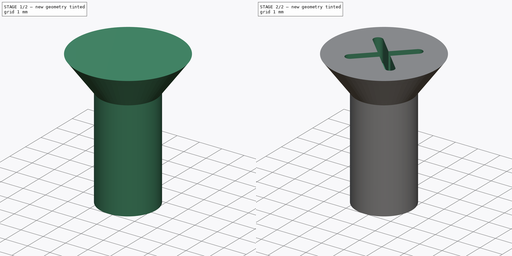
[diagram: build sequence overview — one tinted view per stage of 2, left to right]
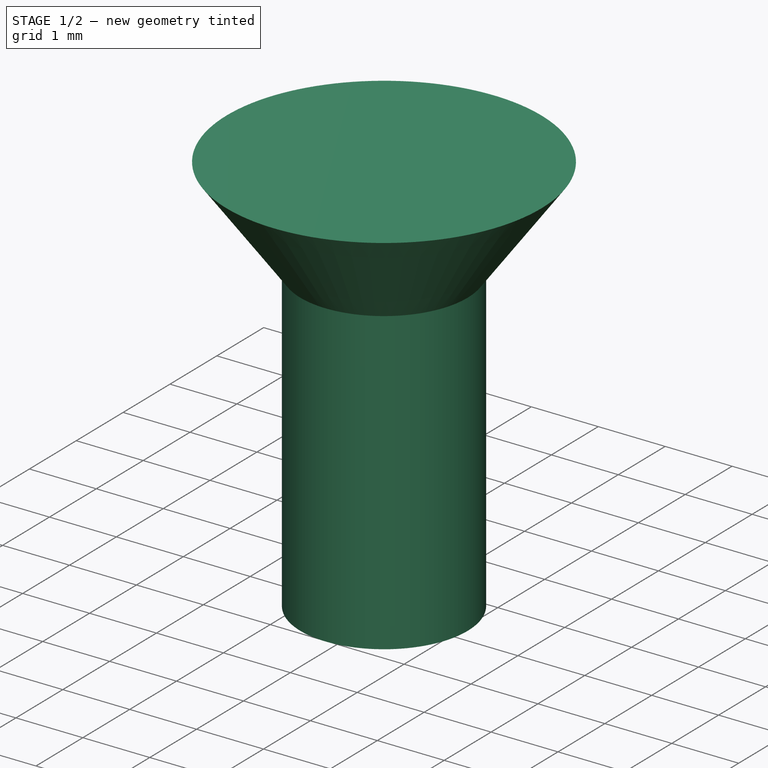
[diagram: stage 1 of 2 — iso view after this stage's code; geometry added in this stage tinted green]
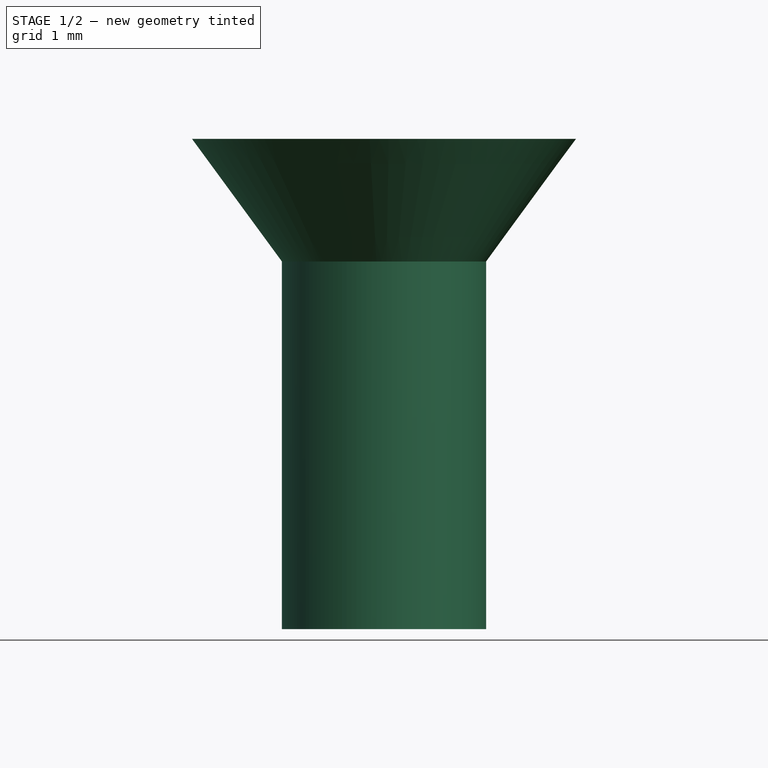
[diagram: stage 1 of 2 — front view after this stage's code; geometry added in this stage tinted green]
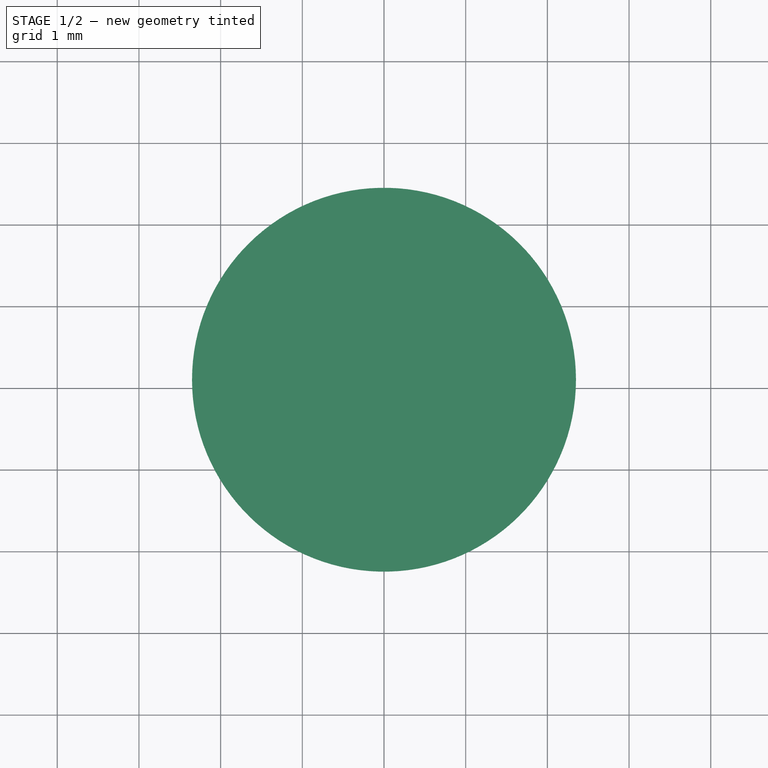
[diagram: stage 1 of 2 — top view after this stage's code; geometry added in this stage tinted green]
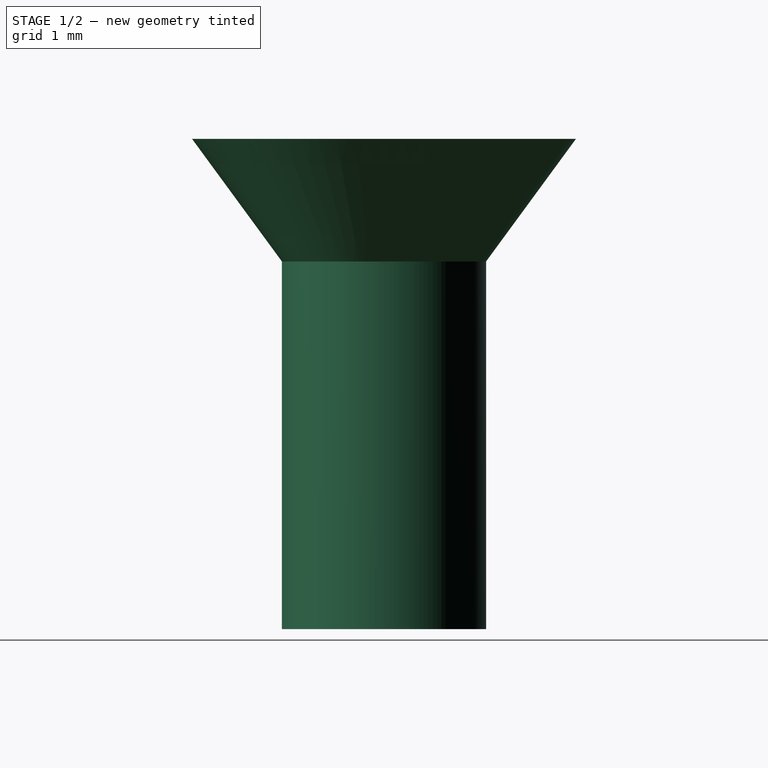
[diagram: stage 1 of 2 — right view after this stage's code; geometry added in this stage tinted green]
FCSTD DOCUMENT  (FreeCAD 0.20R29603 (Git))
Label: M2p5x6
License: All rights reserved
LicenseURL: http://en.wikipedia.org/wiki/All_rights_reserved
objects: Sketcher::SketchObject×2, PartDesign::Revolution×1, PartDesign::Pocket×1, PartDesign::Body×1
note: 7 computed .brp shape members not serialized (recipe doc carries the construction recipe); baked Part::Feature solids carry a one-line shape summary decoded from their .brp

FEATURE [Sketcher::SketchObject] Sketch
  FullyConstrained = true
  MapMode = 5
  Placement = pos=(0,0,0) rot=(1,0,0;1.5708rad)
  Support = -> [XZ_Plane]
  sketch-geometry (5):
    g0: LineSegment StartX=0 StartY=6 StartZ=0 EndX=-2.35 EndY=6 EndZ=0
    g1: LineSegment StartX=-2.35 StartY=6 StartZ=0 EndX=-1.25 EndY=4.5 EndZ=0
    g2: LineSegment StartX=-1.25 StartY=4.5 StartZ=0 EndX=-1.25 EndY=0 EndZ=0
    g3: LineSegment StartX=-1.25 StartY=0 StartZ=0 EndX=0 EndY=0 EndZ=0
    g4: LineSegment StartX=0 StartY=0 StartZ=0 EndX=0 EndY=6 EndZ=0
  constraints (14):
    c: PointOnObject(g0,g-2)
    c: Horizontal(g0)
    c: Coincident(g1,g0)
    c: Coincident(g2,g1)
    c: Vertical(g2)
    c: Coincident(g3,g2)
    c: Coincident(g3,g-1)
    c: Horizontal(g3)
    c: Coincident(g4,g3)
    c: Coincident(g4,g0)
    c: DistanceX(g0,g0) = 2.35
    c: DistanceX(g3,g3) = 1.25
    c: DistanceY(g1,g0) = 1.5
    c: DistanceY(g2,g0) = 6
FEATURE [PartDesign::Revolution] Revolution
  Angle = 360
  Axis = (0,-2e-16,1)
  Base = (0,0,0)
  Placement = pos=(0,0,0) rot=(1,0,0;1.5708rad)
  Profile = -> Sketch
  ReferenceAxis = -> Sketch [V_Axis]
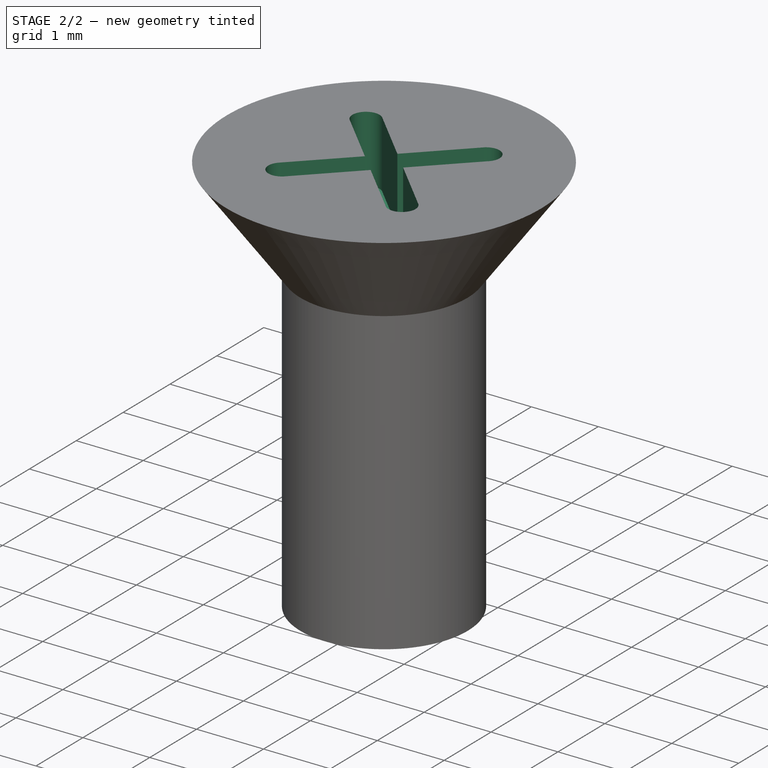
[diagram: stage 2 of 2 — iso view after this stage's code; geometry added in this stage tinted green]
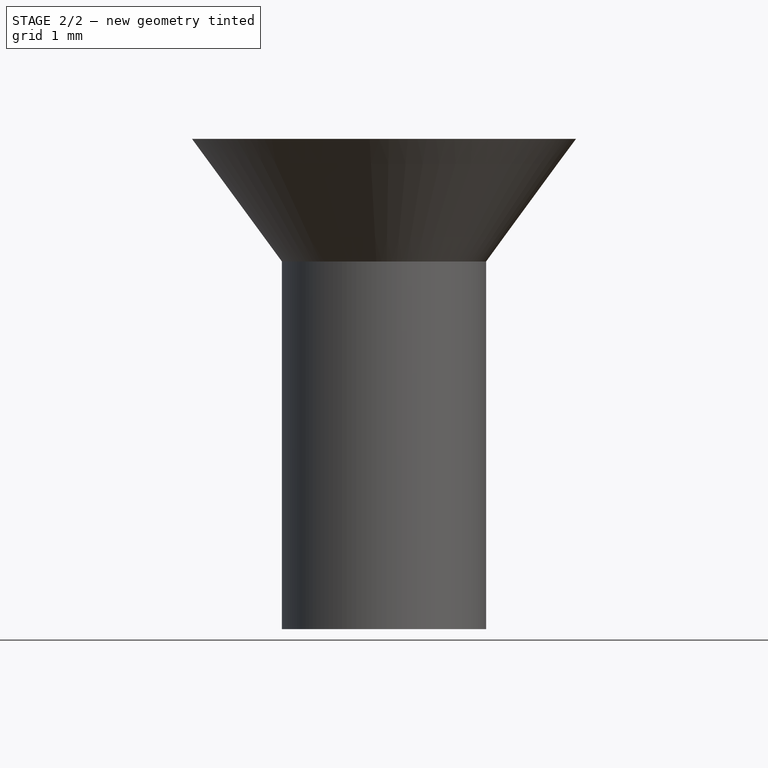
[diagram: stage 2 of 2 — front view after this stage's code; geometry added in this stage tinted green]
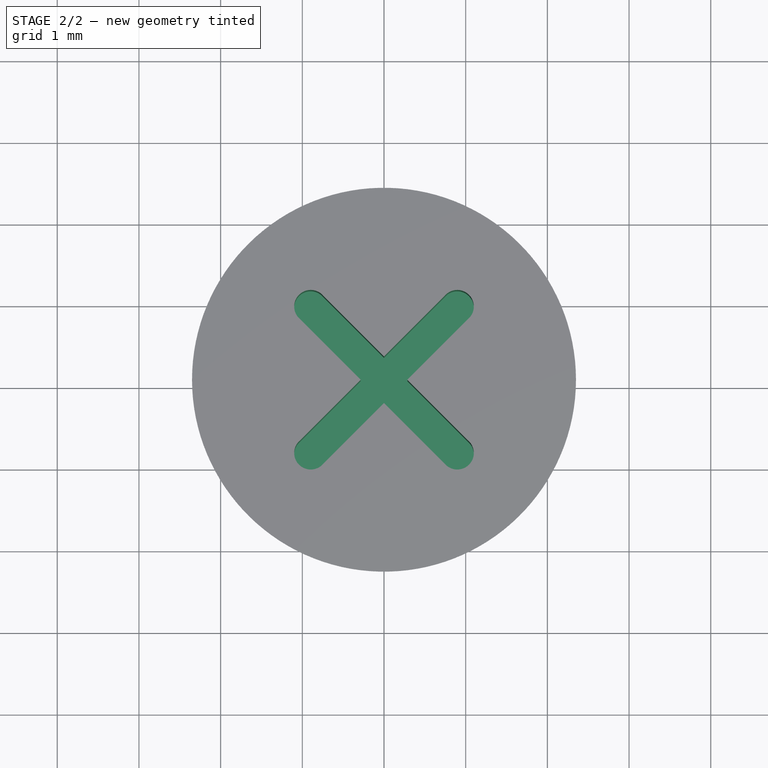
[diagram: stage 2 of 2 — top view after this stage's code; geometry added in this stage tinted green]
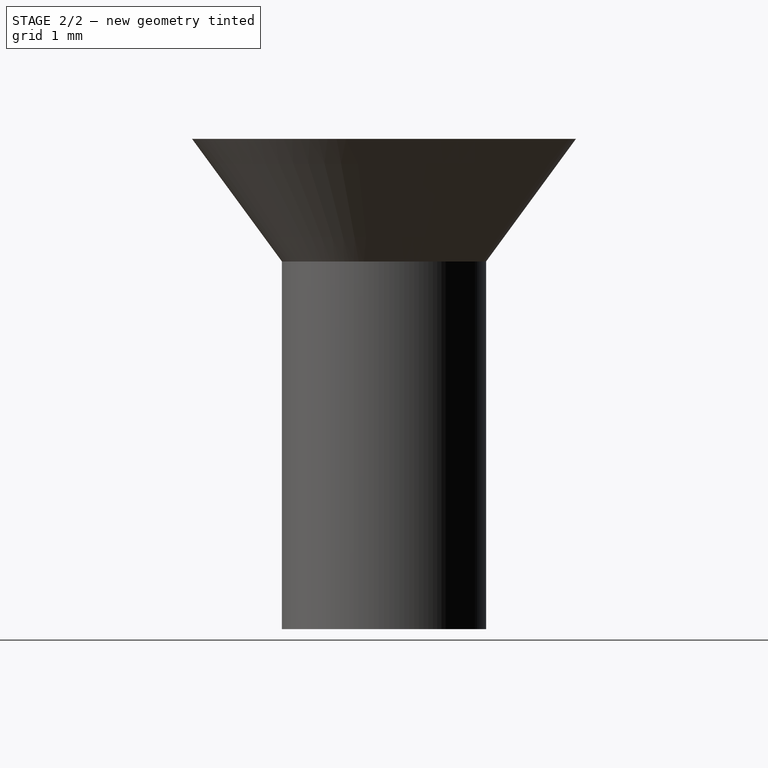
[diagram: stage 2 of 2 — right view after this stage's code; geometry added in this stage tinted green]
FEATURE [Sketcher::SketchObject] Sketch001
  FullyConstrained = false
  MapMode = 5
  Placement = pos=(0,-1.3e-15,6) rot=(0,0,1;3.14159rad)
  Support = -> [Revolution]
  sketch-geometry (22):
    g0: LineSegment StartX=-1.30777 StartY=1.30777 StartZ=0 EndX=1.24935 EndY=-1.24935 EndZ=0
    g1: LineSegment StartX=1.17643 StartY=1.17643 StartZ=0 EndX=-1.27408 EndY=-1.27408 EndZ=0
    g2: LineSegment StartX=-0.74321 StartY=1.02871 StartZ=0 EndX=0 EndY=0.285504 EndZ=0
    g3: ArcOfCircle CenterX=-0.896912 CenterY=0.896912 CenterZ=0 NormalX=0 NormalY=0 NormalZ=1 AngleXU=0 Radius=0.202475 StartAngle=0.708838 EndAngle=4.00355
    g4: LineSegment StartX=-1.02871 StartY=0.74321 StartZ=0 EndX=-0.285504 EndY=3e-16 EndZ=0
    g5: GeomPoint X=-1.04008 Y=1.04008 Z=0
    g6: LineSegment StartX=-0.74321 StartY=1.02871 StartZ=0 EndX=-1.02871 EndY=0.74321 EndZ=0
    g7: ArcOfCircle CenterX=0.896912 CenterY=0.896912 CenterZ=0 NormalX=0 NormalY=0 NormalZ=1 AngleXU=0 Radius=0.202475 StartAngle=5.42123 EndAngle=8.71594
    g8: LineSegment StartX=1.02871 StartY=0.74321 StartZ=0 EndX=0.285504 EndY=3e-16 EndZ=0
    g9: GeomPoint X=1.04008 Y=1.04008 Z=0
    g10: LineSegment StartX=0.74321 StartY=1.02871 StartZ=0 EndX=1.02871 EndY=0.74321 EndZ=0
    g11: LineSegment StartX=0.74321 StartY=1.02871 StartZ=0 EndX=0 EndY=0.285504 EndZ=0
    g12: LineSegment StartX=-0.74321 StartY=-1.02871 StartZ=0 EndX=0 EndY=-0.285504 EndZ=0
    g13: ArcOfCircle CenterX=-0.896912 CenterY=-0.896912 CenterZ=0 NormalX=0 NormalY=0 NormalZ=1 AngleXU=0 Radius=0.202475 StartAngle=2.27963 EndAngle=5.57435
    g14: LineSegment StartX=-1.02871 StartY=-0.74321 StartZ=0 EndX=-0.285504 EndY=-3e-16 EndZ=0
    g15: GeomPoint X=-1.04008 Y=-1.04008 Z=0
    g16: LineSegment StartX=-0.74321 StartY=-1.02871 StartZ=0 EndX=-1.02871 EndY=-0.74321 EndZ=0
    g17: ArcOfCircle CenterX=0.896912 CenterY=-0.896912 CenterZ=0 NormalX=0 NormalY=0 NormalZ=1 AngleXU=0 Radius=0.202475 StartAngle=3.85043 EndAngle=7.14514
    g18: LineSegment StartX=1.02871 StartY=-0.74321 StartZ=0 EndX=0.285504 EndY=-3e-16 EndZ=0
    g19: GeomPoint X=1.04008 Y=-1.04008 Z=0
    g20: LineSegment StartX=0.74321 StartY=-1.02871 StartZ=0 EndX=1.02871 EndY=-0.74321 EndZ=0
    g21: LineSegment StartX=0.74321 StartY=-1.02871 StartZ=0 EndX=0 EndY=-0.285504 EndZ=0
  constraints (40):
    c: PointOnObject(g-1,g0)
    c: PointOnObject(g-1,g1)
    c: Angle(g1,g-2) = 0.785398
    c: Angle(g-2,g0) = 0.785398
    c: PointOnObject(g2,g-2)
    c: Parallel(g2,g0)
    c: PointOnObject(g3,g0)
    c: Coincident(g3,g2)
    c: Coincident(g4,g3)
    c: Equal(g2,g4)
    c: PointOnObject(g5,g3)
    c: PointOnObject(g5,g0)
    c: Parallel(g4,g2)
    c: Coincident(g6,g2)
    c: Coincident(g6,g3)
    c: Perpendicular(g2,g6)
    c: Coincident(g7,g11)
    c: Coincident(g8,g7)
    c: Equal(g11,g8)
    c: PointOnObject(g9,g7)
    c: Parallel(g8,g11)
    c: Coincident(g10,g11)
    c: Coincident(g10,g7)
    c: Perpendicular(g11,g10)
    c: Coincident(g13,g12)
    c: Coincident(g14,g13)
    c: Equal(g12,g14)
    c: PointOnObject(g15,g13)
    c: Parallel(g14,g12)
    c: Coincident(g16,g12)
    c: Coincident(g16,g13)
    c: Perpendicular(g12,g16)
    c: Coincident(g17,g21)
    c: Coincident(g18,g17)
    c: Equal(g21,g18)
    c: PointOnObject(g19,g17)
    c: Parallel(g18,g21)
    c: Coincident(g20,g21)
    c: Coincident(g20,g17)
    c: Perpendicular(g21,g20)
FEATURE [PartDesign::Pocket] Pocket
  BaseFeature = -> Revolution
  Direction = (0,2e-16,-1)
  Length = 1
  Length2 = 5
  Placement = pos=(0,0,0) rot=(1,0,0;1.5708rad)
  Profile = -> Sketch001
  ReferenceAxis = -> Sketch001 [N_Axis]
  Type = 0
FEATURE [PartDesign::Body] Body
  Group = -> [Sketch,Revolution,Sketch001,Pocket]
  Origin = -> Origin
  Tip = -> Pocket
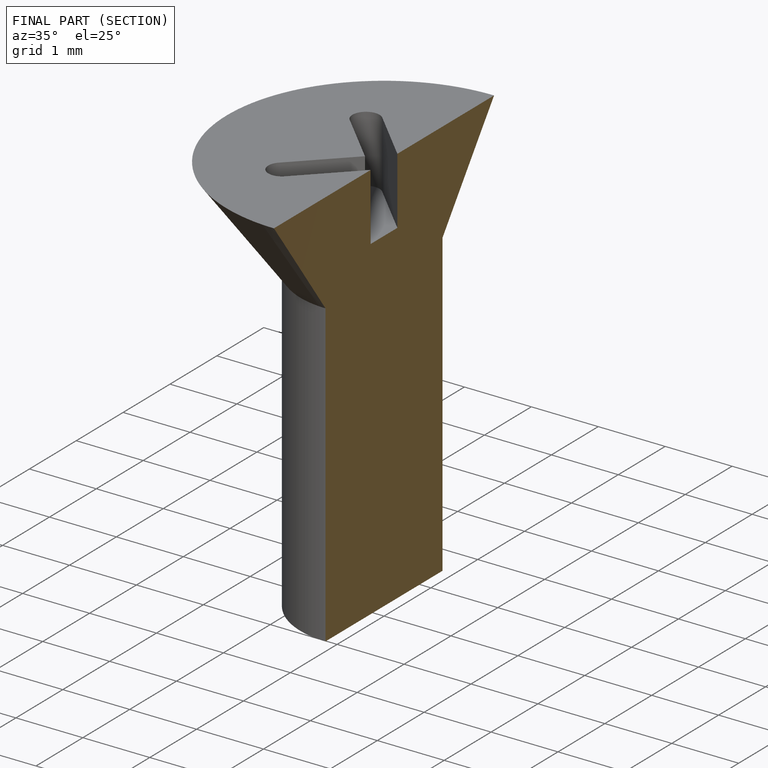
[diagram: finished part — half-section view (interior)]
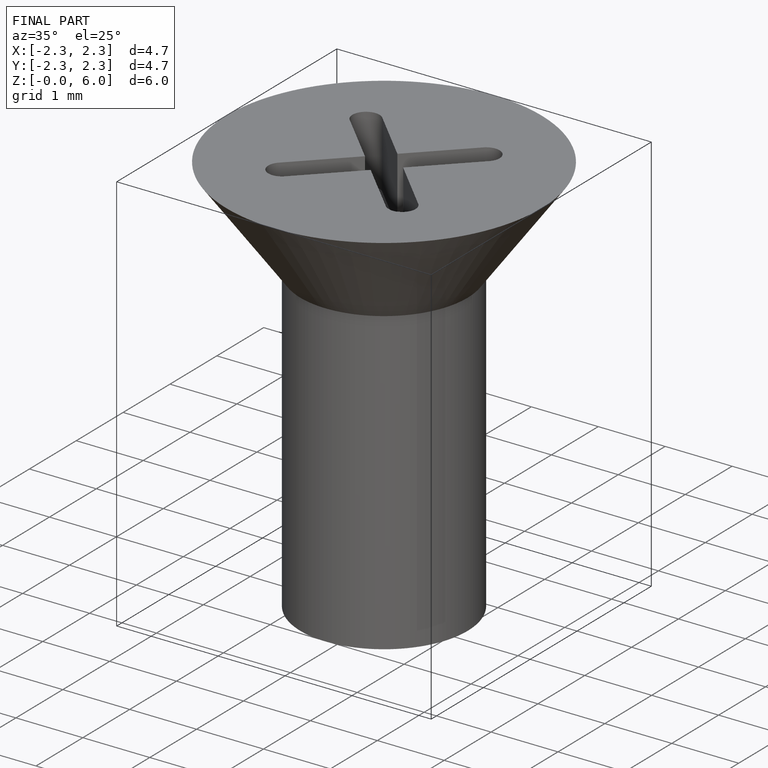
[diagram: finished part — iso view with bounding-box wireframe]
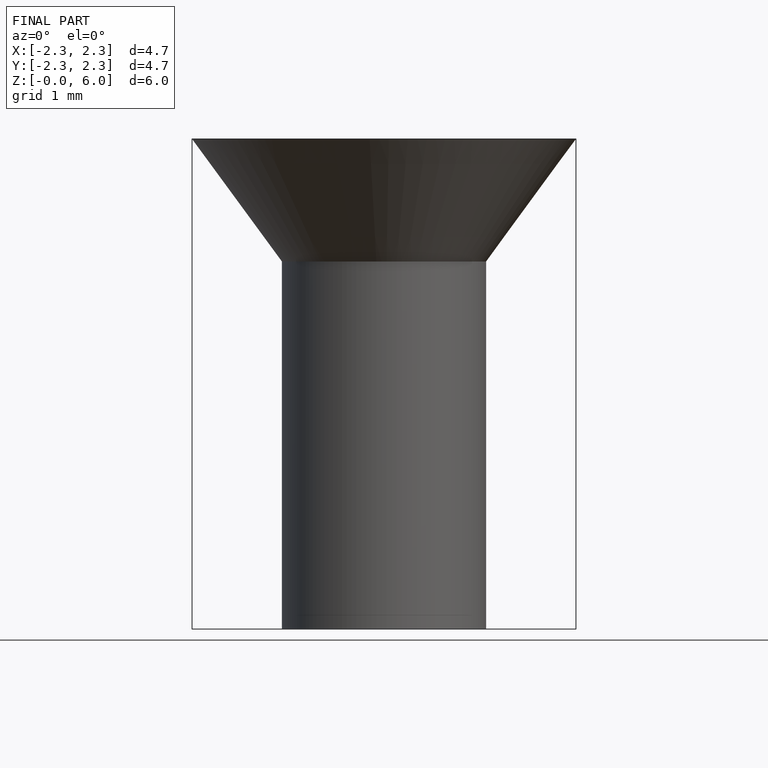
[diagram: finished part — front view with bounding-box wireframe]
